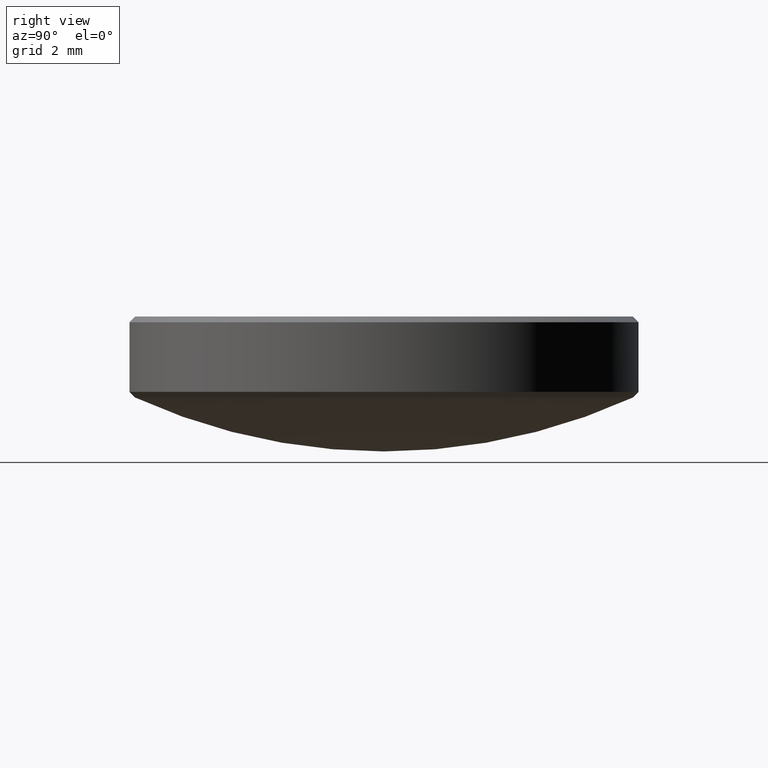
[diagram: clean part render]
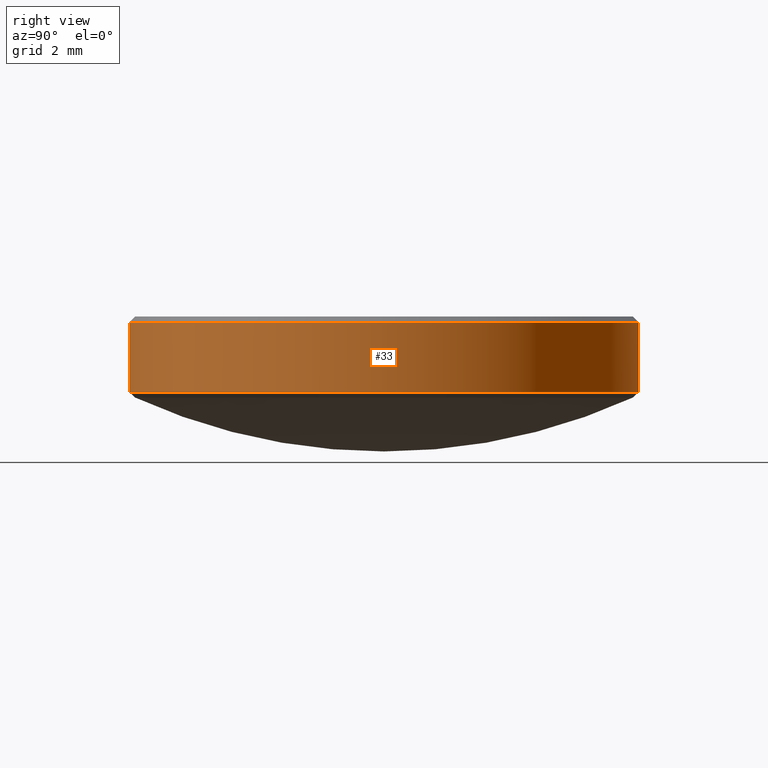
[diagram: same view with one face highlighted and labeled with its STEP entity id]
A machine part, right view. The second image highlights one B-rep face of the part: STEP entity #33.
In plain terms, the highlighted cylindrical surface (partial cylindrical patch) has radius 6.35 mm, axis along (-0, -0, 1).
Its self-contained STEP definition (entity closure, byte-faithful):
#3 = EDGE_CURVE ( 'NONE', #327, #126, #259, .T. ) ;
#6 = DIRECTION ( 'NONE',  ( 0.0000000000000000000, -1.000000000000000000, -1.835460370743176800E-016 ) ) ;
#19 = EDGE_CURVE ( 'NONE', #325, #327, #24, .T. ) ;
#24 = CIRCLE ( 'NONE', #200, 0.2500000000000000000 ) ;
#30 = CIRCLE ( 'NONE', #315, 0.2500000000000000000 ) ;
#33 = ADVANCED_FACE ( 'NONE', ( #190 ), #153, .T. ) ;
#48 = CARTESIAN_POINT ( 'NONE',  ( 3.061616997868383000E-017, 0.2500000000000000000, 0.05150915296063263100 ) ) ;
#63 = DIRECTION ( 'NONE',  ( -0.0000000000000000000, -1.836909530733566100E-016, 1.000000000000000000 ) ) ;
#81 = CARTESIAN_POINT ( 'NONE',  ( 0.0000000000000000000, 1.094464117944115000E-017, -0.008072666374097677400 ) ) ;
#87 = VECTOR ( 'NONE', #106, 39.37007874015748100 ) ;
#103 = EDGE_CURVE ( 'NONE', #270, #126, #30, .T. ) ;
#106 = DIRECTION ( 'NONE',  ( -0.0000000000000000000, -1.836909530733566100E-016, 1.000000000000000000 ) ) ;
#119 = CARTESIAN_POINT ( 'NONE',  ( 0.0000000000000000000, -1.626968277904726200E-018, 0.06036624826491248500 ) ) ;
#126 = VERTEX_POINT ( 'NONE', #229 ) ;
#133 = CARTESIAN_POINT ( 'NONE',  ( 0.0000000000000000000, -0.2500000000000000000, -0.008072666374097724200 ) ) ;
#136 = ORIENTED_EDGE ( 'NONE', *, *, #103, .F. ) ;
#142 = CARTESIAN_POINT ( 'NONE',  ( 0.0000000000000000000, 0.0000000000000000000, 0.05150915296063259000 ) ) ;
#145 = LINE ( 'NONE', #199, #87 ) ;
#146 = ORIENTED_EDGE ( 'NONE', *, *, #19, .T. ) ;
#153 = CYLINDRICAL_SURFACE ( 'NONE', #275, 0.2500000000000000000 ) ;
#163 = DIRECTION ( 'NONE',  ( -0.0000000000000000000, -1.836909530733566100E-016, 1.000000000000000000 ) ) ;
#190 = FACE_OUTER_BOUND ( 'NONE', #322, .T. ) ;
#199 = CARTESIAN_POINT ( 'NONE',  ( 0.0000000000000000000, -0.2500000000000000000, 0.05150915296063254800 ) ) ;
#200 = AXIS2_PLACEMENT_3D ( 'NONE', #81, #163, #6 ) ;
#209 = DIRECTION ( 'NONE',  ( -0.0000000000000000000, -1.836909530733566100E-016, 1.000000000000000000 ) ) ;
#226 = DIRECTION ( 'NONE',  ( 0.0000000000000000000, -1.000000000000000000, -1.707404996040164500E-016 ) ) ;
#229 = CARTESIAN_POINT ( 'NONE',  ( 3.061616997868383000E-017, 0.2500000000000000000, 0.06036624826491252700 ) ) ;
#230 = ORIENTED_EDGE ( 'NONE', *, *, #3, .T. ) ;
#240 = CARTESIAN_POINT ( 'NONE',  ( 0.0000000000000000000, -0.2500000000000000000, 0.06036624826491244300 ) ) ;
#243 = ORIENTED_EDGE ( 'NONE', *, *, #246, .F. ) ;
#246 = EDGE_CURVE ( 'NONE', #325, #270, #145, .T. ) ;
#259 = LINE ( 'NONE', #48, #300 ) ;
#270 = VERTEX_POINT ( 'NONE', #240 ) ;
#275 = AXIS2_PLACEMENT_3D ( 'NONE', #142, #323, #279 ) ;
#279 = DIRECTION ( 'NONE',  ( 0.0000000000000000000, -1.000000000000000000, -1.707404996040164500E-016 ) ) ;
#298 = CARTESIAN_POINT ( 'NONE',  ( 3.061616997868382400E-017, 0.2500000000000000000, -0.008072666374097632300 ) ) ;
#300 = VECTOR ( 'NONE', #63, 39.37007874015748100 ) ;
#315 = AXIS2_PLACEMENT_3D ( 'NONE', #119, #209, #226 ) ;
#322 = EDGE_LOOP ( 'NONE', ( #146, #230, #136, #243 ) ) ;
#323 = DIRECTION ( 'NONE',  ( -0.0000000000000000000, -1.836909530733566100E-016, 1.000000000000000000 ) ) ;
#325 = VERTEX_POINT ( 'NONE', #133 ) ;
#327 = VERTEX_POINT ( 'NONE', #298 ) ;